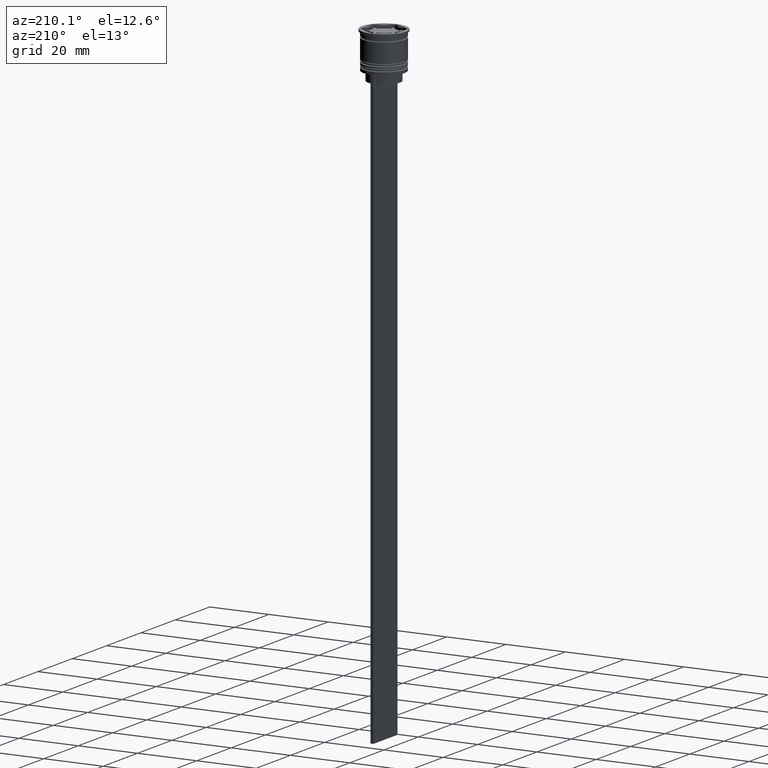
[diagram: clean part render]
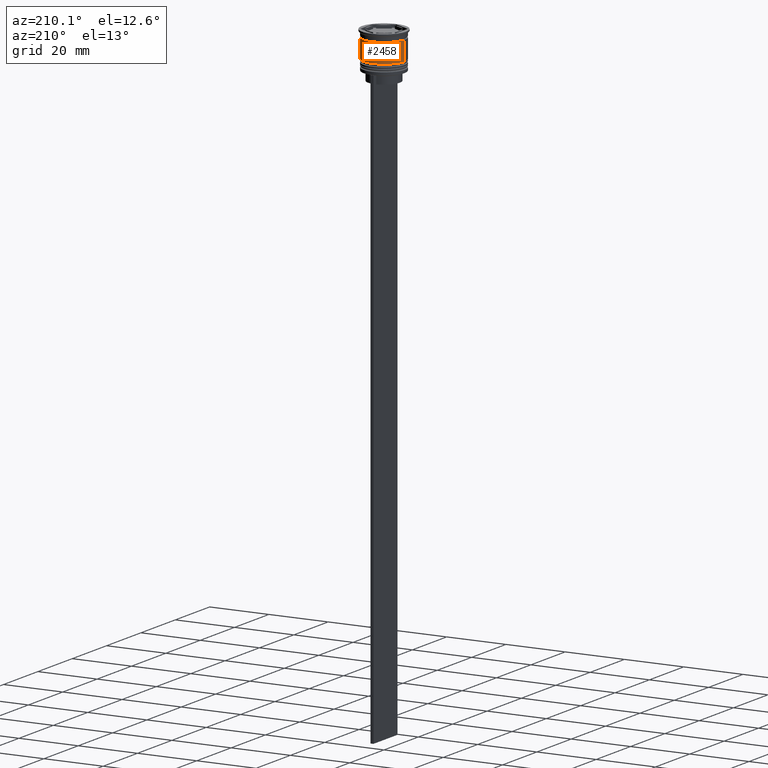
[diagram: same view with one face highlighted and labeled with its STEP entity id]
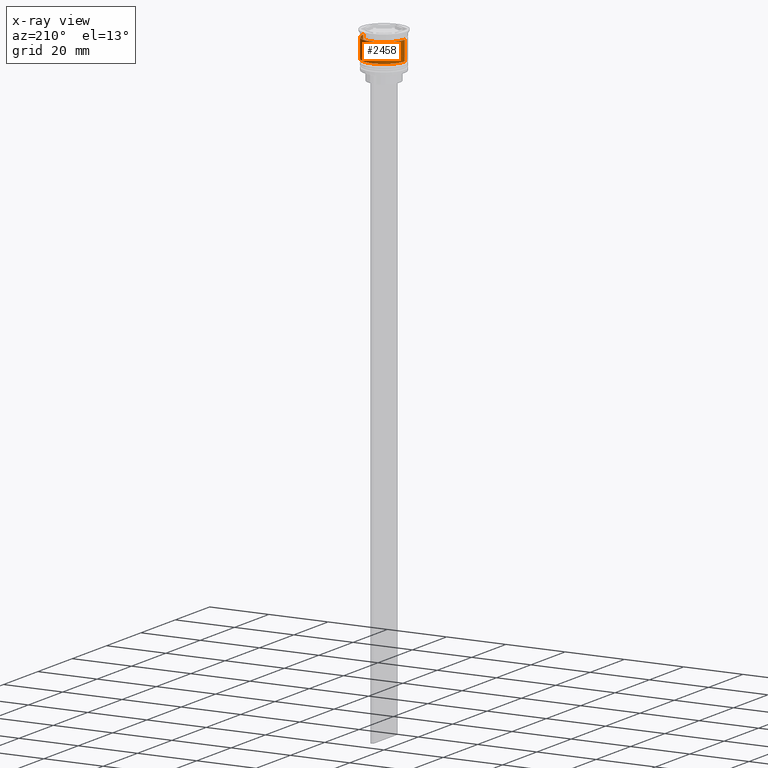
[diagram: x-ray of the same camera — body ghosted, the highlighted face saturated]
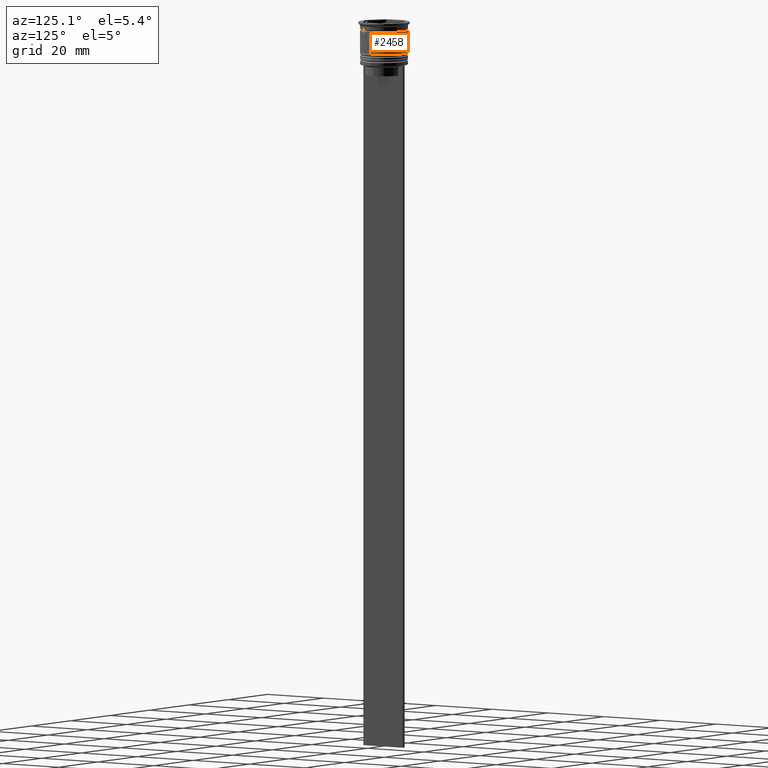
[diagram: same view with one face highlighted and labeled with its STEP entity id]
A machine part, auxiliary view. The second image highlights one B-rep face of the part: STEP entity #2458.
The next image is the same camera in x-ray: the body ghosted, the highlighted face saturated — about 0% of this face is hidden behind the body in this view.
A second angle (auxiliary view) of the same face is appended — the face is thin or edge-on in the first view.
In plain terms, the highlighted cylindrical surface (edge-blend (fillet) strip) has radius 7 mm, axis along (-0, -0, 1).
Its self-contained STEP definition (entity closure, byte-faithful):
#42 = ORIENTED_EDGE ( 'NONE', *, *, #2168, .T. ) ;
#82 = DIRECTION ( 'NONE',  ( -0.000000000000000000, -0.000000000000000000, 1.000000000000000000 ) ) ;
#118 = ORIENTED_EDGE ( 'NONE', *, *, #1321, .F. ) ;
#122 = VERTEX_POINT ( 'NONE', #1569 ) ;
#186 = ORIENTED_EDGE ( 'NONE', *, *, #1377, .T. ) ;
#231 = EDGE_LOOP ( 'NONE', ( #42, #186, #118, #264 ) ) ;
#264 = ORIENTED_EDGE ( 'NONE', *, *, #280, .F. ) ;
#280 = EDGE_CURVE ( 'NONE', #2115, #122, #1841, .T. ) ;
#344 = AXIS2_PLACEMENT_3D ( 'NONE', #827, #1008, #1594 ) ;
#471 = AXIS2_PLACEMENT_3D ( 'NONE', #797, #1199, #1951 ) ;
#604 = CARTESIAN_POINT ( 'NONE',  ( 6.999999999999999112, 0.000000000000000000, 0.000000000000000000 ) ) ;
#625 = CYLINDRICAL_SURFACE ( 'NONE', #471, 6.999999999999999112 ) ;
#672 = LINE ( 'NONE', #1047, #1260 ) ;
#715 = VECTOR ( 'NONE', #2089, 1000.000000000000000 ) ;
#797 = CARTESIAN_POINT ( 'NONE',  ( 0.000000000000000000, 0.000000000000000000, 0.000000000000000000 ) ) ;
#827 = CARTESIAN_POINT ( 'NONE',  ( 0.000000000000000000, 0.000000000000000000, -9.000000000000001776 ) ) ;
#1008 = DIRECTION ( 'NONE',  ( -0.000000000000000000, -0.000000000000000000, 1.000000000000000000 ) ) ;
#1047 = CARTESIAN_POINT ( 'NONE',  ( -6.999999999999999112, 8.572527594031472204E-16, 0.000000000000000000 ) ) ;
#1140 = FACE_OUTER_BOUND ( 'NONE', #231, .T. ) ;
#1199 = DIRECTION ( 'NONE',  ( -0.000000000000000000, -0.000000000000000000, 1.000000000000000000 ) ) ;
#1260 = VECTOR ( 'NONE', #2381, 1000.000000000000000 ) ;
#1321 = EDGE_CURVE ( 'NONE', #122, #2201, #2023, .T. ) ;
#1347 = VERTEX_POINT ( 'NONE', #2003 ) ;
#1377 = EDGE_CURVE ( 'NONE', #1347, #2201, #672, .T. ) ;
#1463 = CIRCLE ( 'NONE', #344, 7.000000000000000888 ) ;
#1533 = AXIS2_PLACEMENT_3D ( 'NONE', #2163, #82, #2204 ) ;
#1569 = CARTESIAN_POINT ( 'NONE',  ( 6.999999999999997335, 0.000000000000000000, -2.500000000000000444 ) ) ;
#1594 = DIRECTION ( 'NONE',  ( 1.000000000000000000, 0.000000000000000000, 0.000000000000000000 ) ) ;
#1778 = CARTESIAN_POINT ( 'NONE',  ( -6.999999999999997335, 8.572527594031471218E-16, -2.500000000000000444 ) ) ;
#1841 = LINE ( 'NONE', #604, #715 ) ;
#1951 = DIRECTION ( 'NONE',  ( 1.000000000000000000, 0.000000000000000000, 0.000000000000000000 ) ) ;
#2003 = CARTESIAN_POINT ( 'NONE',  ( -7.000000000000000888, 8.572527594031474176E-16, -9.000000000000001776 ) ) ;
#2023 = CIRCLE ( 'NONE', #1533, 6.999999999999997335 ) ;
#2089 = DIRECTION ( 'NONE',  ( -0.000000000000000000, -0.000000000000000000, 1.000000000000000000 ) ) ;
#2115 = VERTEX_POINT ( 'NONE', #2455 ) ;
#2163 = CARTESIAN_POINT ( 'NONE',  ( 0.000000000000000000, 0.000000000000000000, -2.500000000000000444 ) ) ;
#2168 = EDGE_CURVE ( 'NONE', #2115, #1347, #1463, .T. ) ;
#2201 = VERTEX_POINT ( 'NONE', #1778 ) ;
#2204 = DIRECTION ( 'NONE',  ( 1.000000000000000000, 0.000000000000000000, 0.000000000000000000 ) ) ;
#2381 = DIRECTION ( 'NONE',  ( -0.000000000000000000, -0.000000000000000000, 1.000000000000000000 ) ) ;
#2455 = CARTESIAN_POINT ( 'NONE',  ( 7.000000000000000888, 0.000000000000000000, -9.000000000000001776 ) ) ;
#2458 = ADVANCED_FACE ( 'NONE', ( #1140 ), #625, .T. ) ;